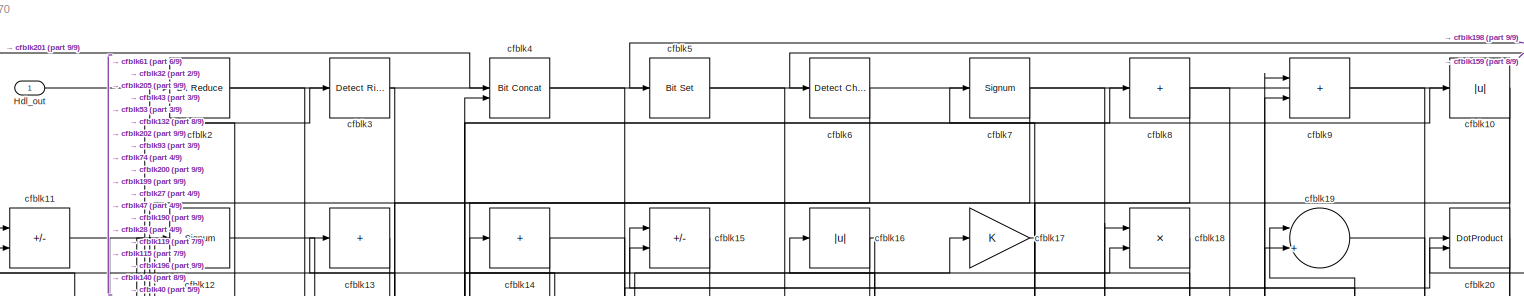
[diagram: root canvas - part 1/9, full width, top band]
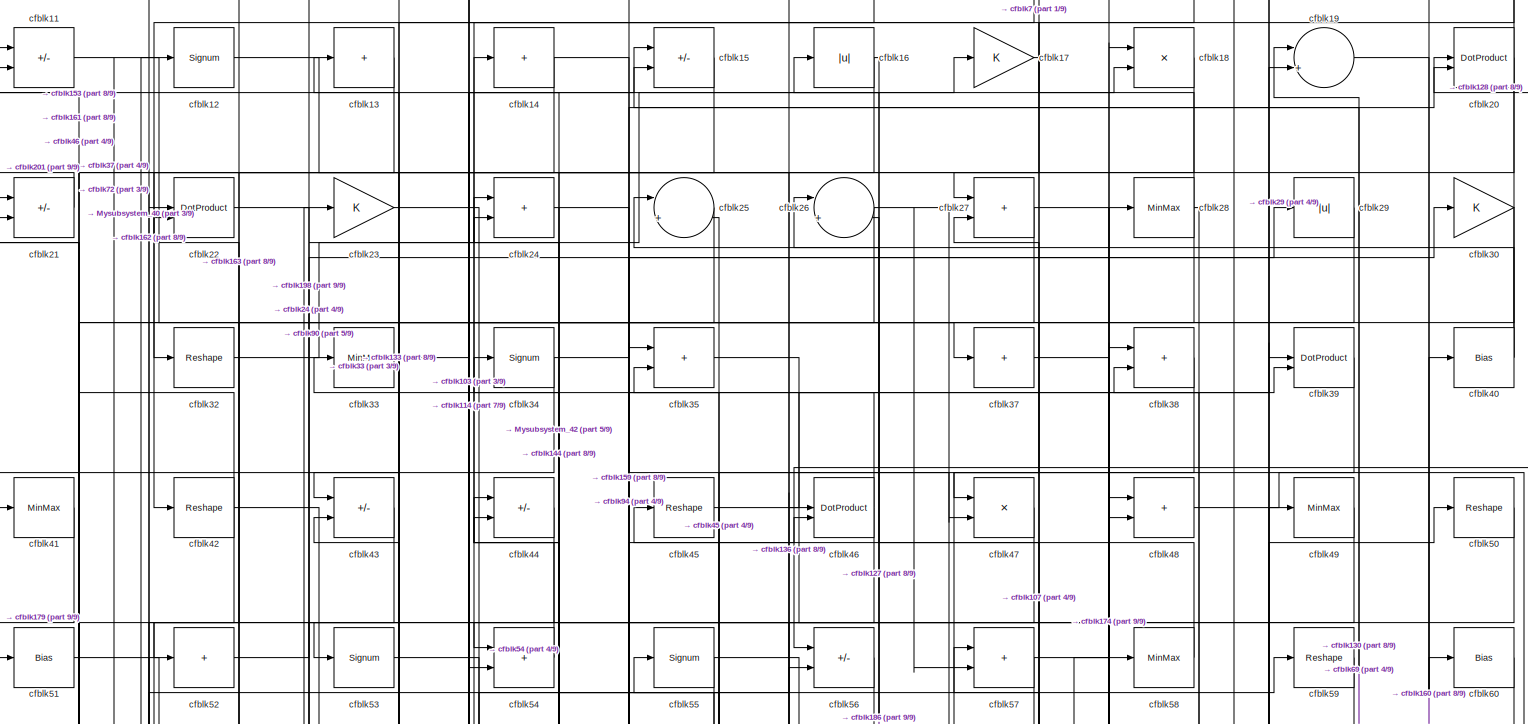
[diagram: root canvas - part 2/9, full width, top band]
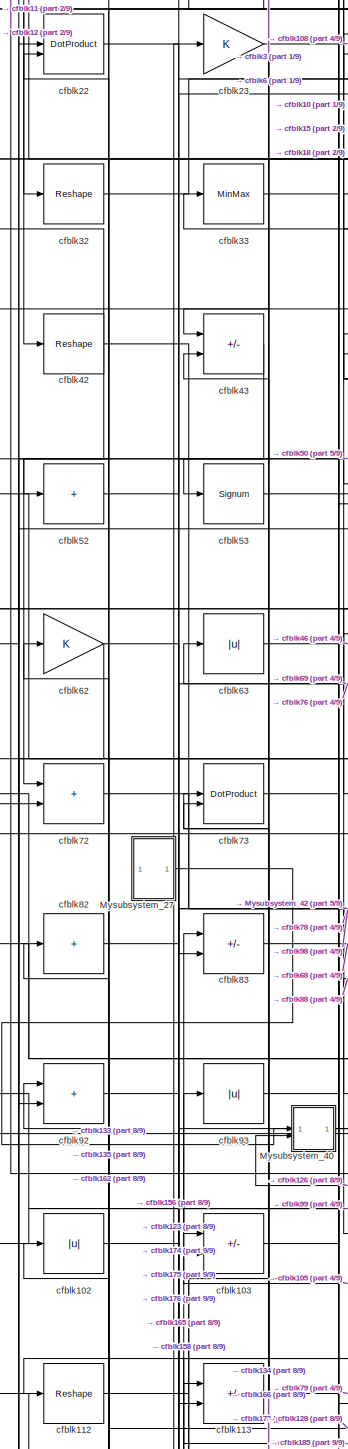
[diagram: root canvas - part 3/9, middle left region]
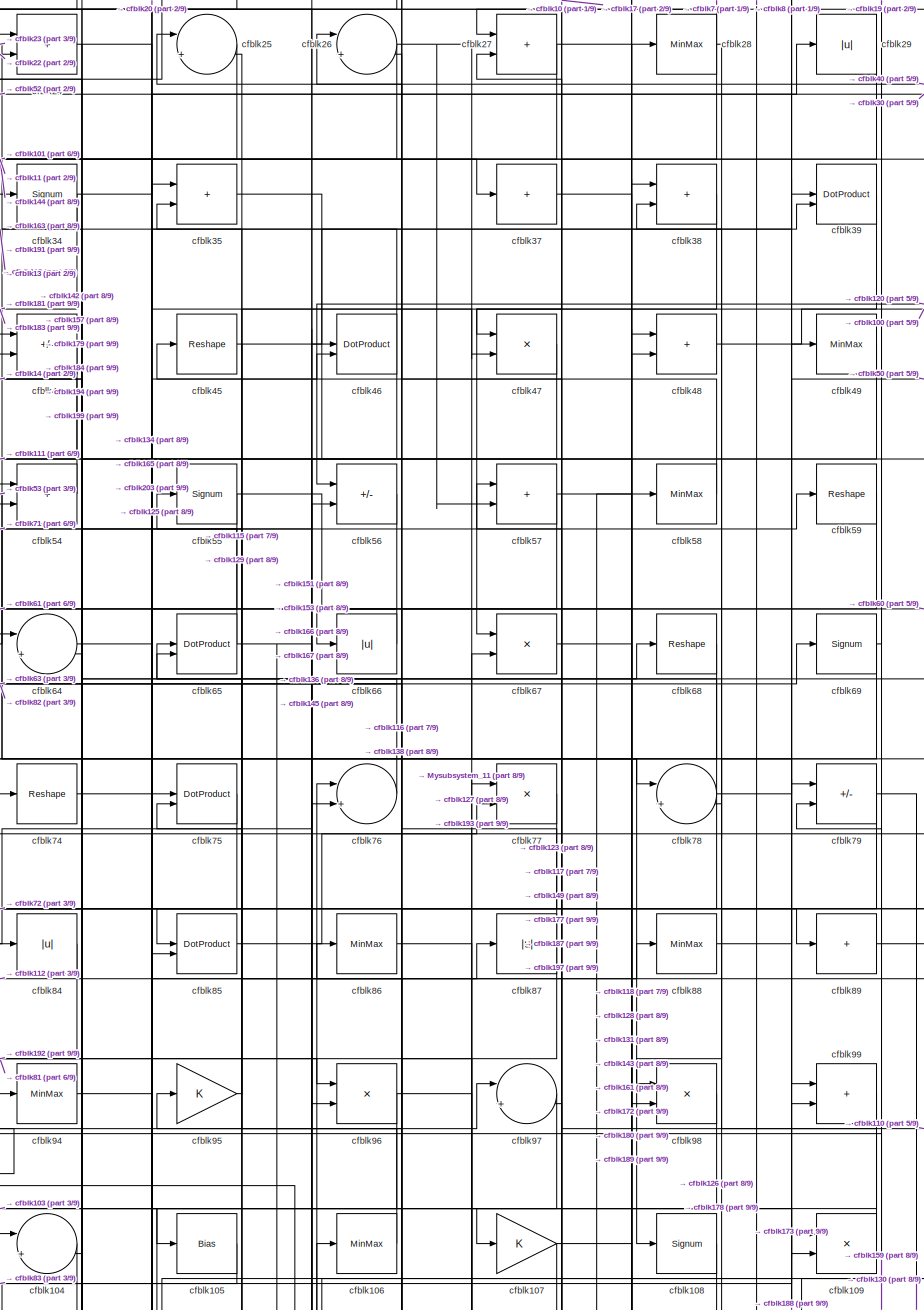
[diagram: root canvas - part 4/9, top center region]
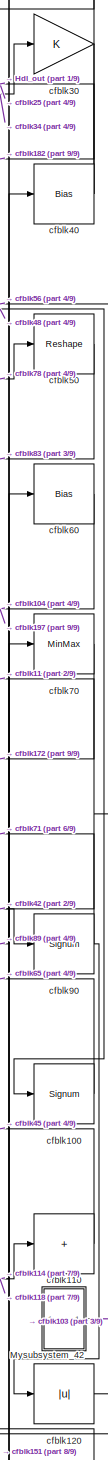
[diagram: root canvas - part 5/9, middle right region]
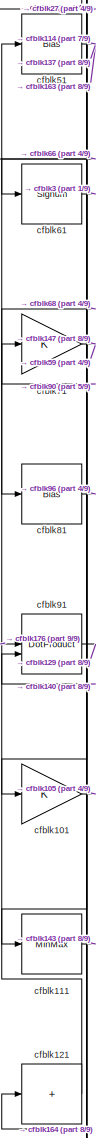
[diagram: root canvas - part 6/9, middle left region]
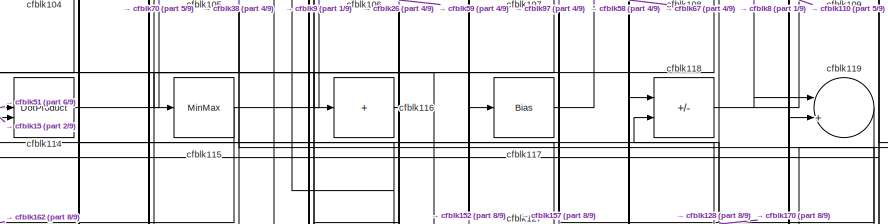
[diagram: root canvas - part 7/9, central region]
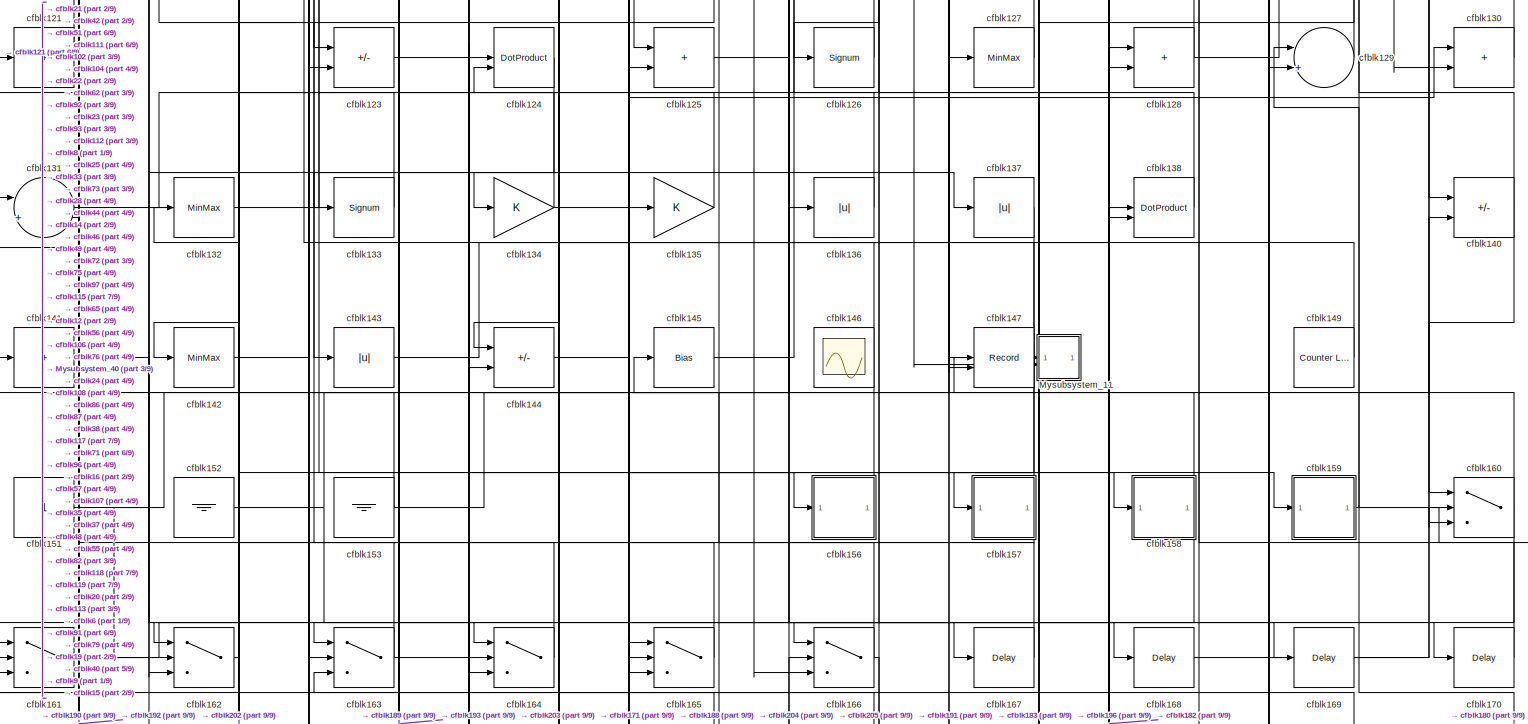
[diagram: root canvas - part 8/9, full width, bottom band]
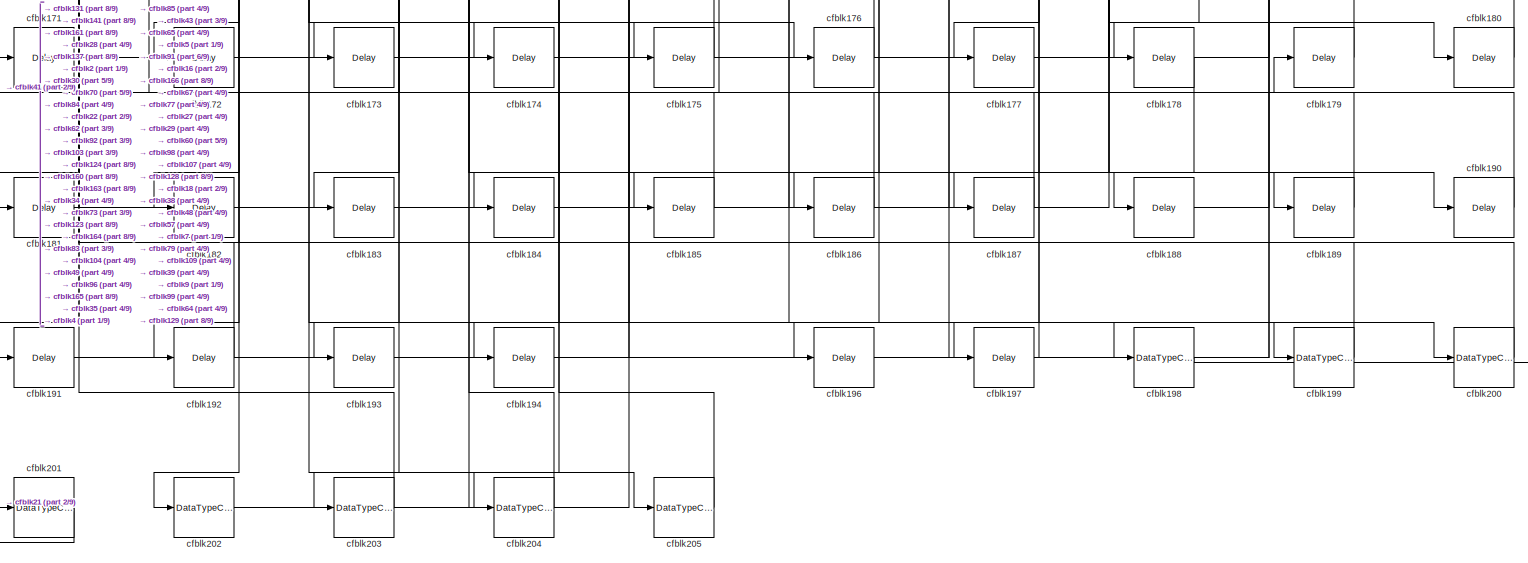
[diagram: root canvas - part 9/9, full width, bottom band]
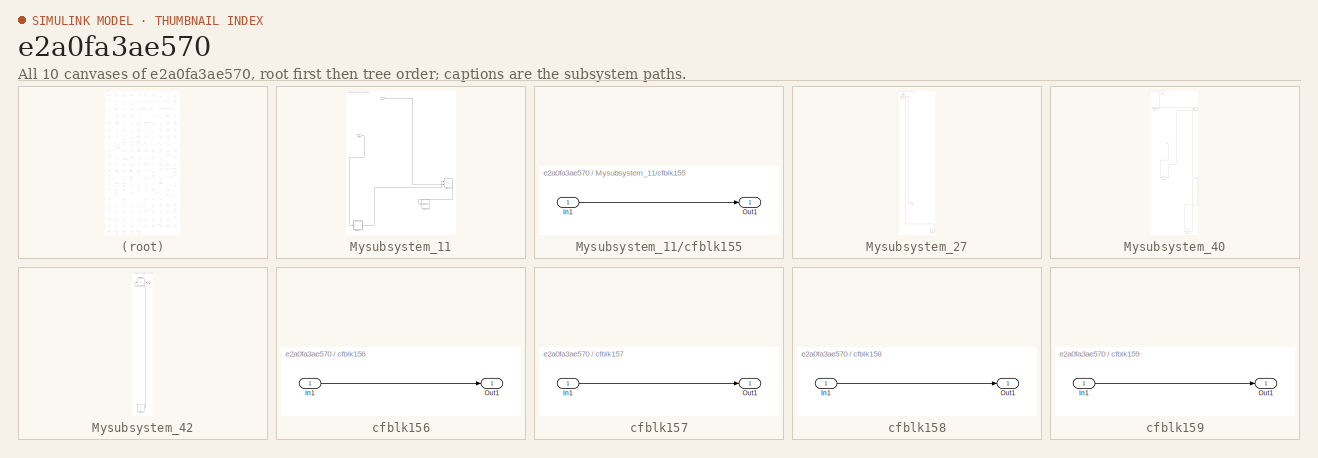
[diagram: thumbnail index - all 10 canvases of the model, root first then tree order]
MODEL slx_e2a0fa3ae570
KIND model
CONFIG AbsTol = auto
CONFIG EnableMultiTasking = off
CONFIG FixedStep = auto
CONFIG MaxStep = auto
CONFIG MinStep = auto
CONFIG RelTol = 1e-3
CONFIG SampleTimeConstraint = Unconstrained
CONFIG SolverName = VariableStepAuto
CONFIG StartTime = 0.0
CONFIG StopTime = 10.0
BLOCK [Outport] Hdl_out
  OutDataTypeStr = uint8
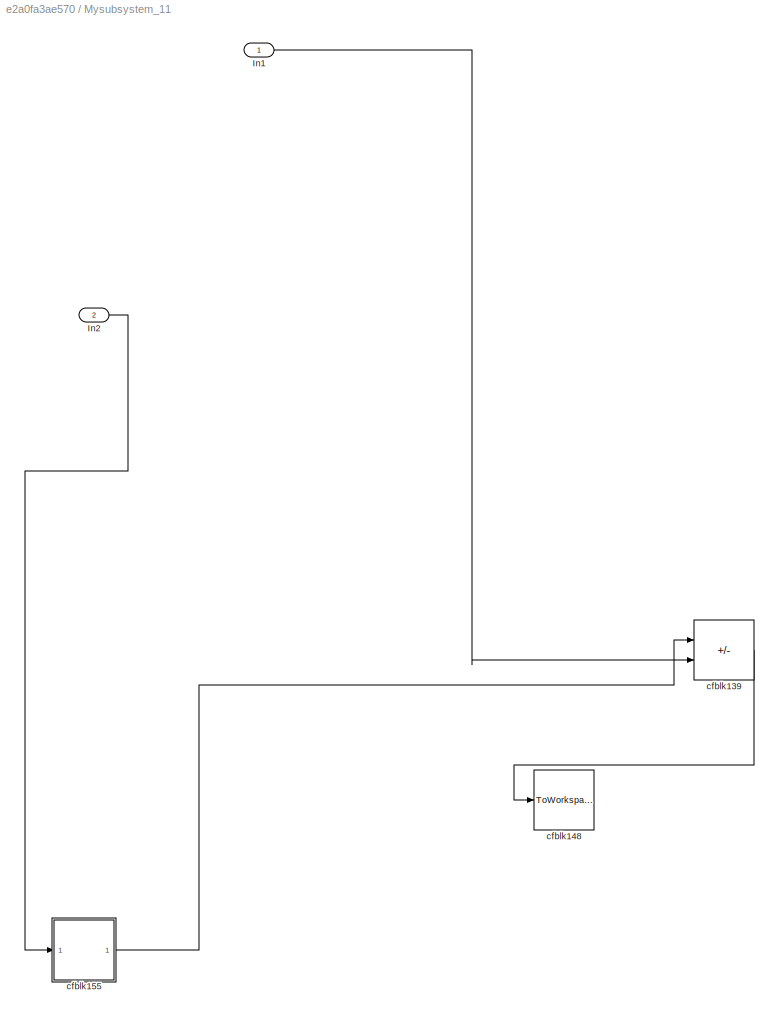
BLOCK [SubSystem] Mysubsystem_11
  RTWFcnName = Mysubsystem_11
  RTWFcnNameOpts = User specified
  RTWFileNameOpts = Use function name
  RTWSystemCode = Reusable function
  TreatAsAtomicUnit = on
BLOCK [Inport] Mysubsystem_11/In1
BLOCK [Inport] Mysubsystem_11/In2
  Port = 2
BLOCK [Sum] Mysubsystem_11/cfblk139
  IconShape = rectangular
  Inputs = +-
BLOCK [ToWorkspace] Mysubsystem_11/cfblk148
  MaxDataPoints = inf
  SampleTime = -1
  SaveFormat = Timeseries
  VariableName = simout
BLOCK [SubSystem] Mysubsystem_11/cfblk155
  LibrarySourceBlock = hdlsllib/Ports &\nSubsystems/Subsystem
BLOCK [Inport] Mysubsystem_11/cfblk155/In1
BLOCK [Outport] Mysubsystem_11/cfblk155/Out1
BLOCK [SubSystem] Mysubsystem_27
  RTWFcnName = Mysubsystem_27
  RTWFcnNameOpts = User specified
  RTWFileNameOpts = Use function name
  RTWSystemCode = Reusable function
  TreatAsAtomicUnit = on
BLOCK [Reference] Mysubsystem_27/cfblk1  REF=hdlsllib/Logic and Bit
Operations/Bit Slice
  SourceBlock = hdlsllib/Logic and Bit\nOperations/Bit Slice
  SourceType = Bit Slice
BLOCK [Ground] Mysubsystem_27/cfblk154
BLOCK [Outport] Mysubsystem_27/y
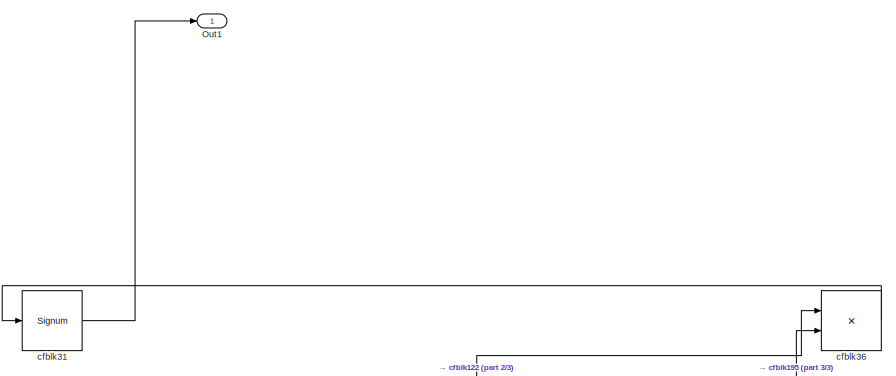
[diagram: Mysubsystem_40 - part 1/3, full width, top band]
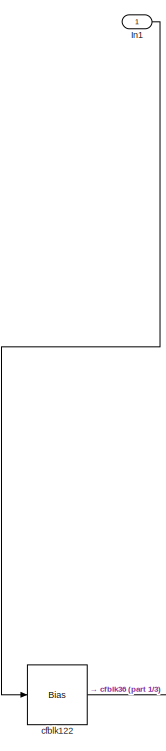
[diagram: Mysubsystem_40 - part 2/3, middle left region]
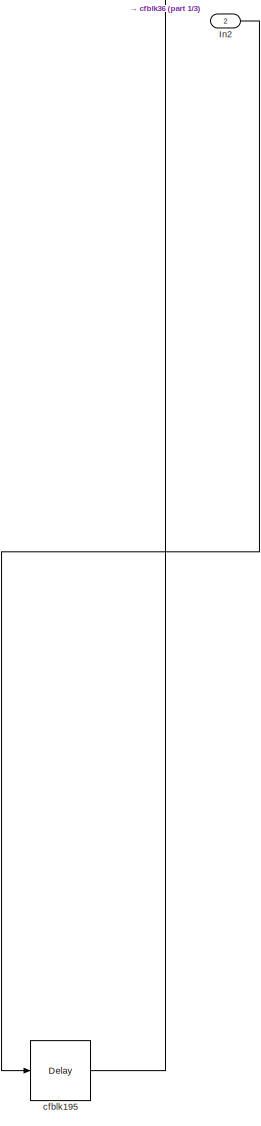
[diagram: Mysubsystem_40 - part 3/3, bottom right region]
BLOCK [SubSystem] Mysubsystem_40
  RTWFcnName = Mysubsystem_40
  RTWFcnNameOpts = User specified
  RTWFileNameOpts = Use function name
  RTWSystemCode = Reusable function
  TreatAsAtomicUnit = on
BLOCK [Inport] Mysubsystem_40/In1
BLOCK [Inport] Mysubsystem_40/In2
  Port = 2
BLOCK [Outport] Mysubsystem_40/Out1
BLOCK [Bias] Mysubsystem_40/cfblk122
  Bias = 0.0
  SaturateOnIntegerOverflow = off
BLOCK [Delay] Mysubsystem_40/cfblk195
  InputPortMap = u0
  SampleTime = 1
BLOCK [Signum] Mysubsystem_40/cfblk31
BLOCK [Product] Mysubsystem_40/cfblk36
  Inputs = */
  RndMeth = Zero
  SaturateOnIntegerOverflow = on
BLOCK [SubSystem] Mysubsystem_42
  RTWFcnName = Mysubsystem_42
  RTWFcnNameOpts = User specified
  RTWFileNameOpts = Use function name
  RTWSystemCode = Reusable function
  TreatAsAtomicUnit = on
BLOCK [Outport] Mysubsystem_42/Out1
BLOCK [Constant] Mysubsystem_42/cfblk150
  SampleTime = -1
BLOCK [Sum] Mysubsystem_42/cfblk80
  IconShape = rectangular
  Inputs = +
BLOCK [Abs] cfblk10
  OutDataTypeStr = uint8
  SaturateOnIntegerOverflow = off
BLOCK [Signum] cfblk100
BLOCK [Gain] cfblk101
  OutDataTypeStr = uint8
BLOCK [Abs] cfblk102
  OutDataTypeStr = uint8
  SaturateOnIntegerOverflow = off
BLOCK [Sum] cfblk103
  IconShape = rectangular
  Inputs = +-
  OutDataTypeStr = uint8
BLOCK [Sum] cfblk104
  Inputs = |++
  OutDataTypeStr = uint8
BLOCK [Bias] cfblk105
  Bias = 0.0
  SaturateOnIntegerOverflow = off
BLOCK [MinMax] cfblk106
  OutDataTypeStr = uint8
BLOCK [Gain] cfblk107
  OutDataTypeStr = uint8
BLOCK [Signum] cfblk108
BLOCK [Product] cfblk109
  Inputs = */
  OutDataTypeStr = uint8
  RndMeth = Zero
  SaturateOnIntegerOverflow = on
BLOCK [Sum] cfblk11
  IconShape = rectangular
  Inputs = +-
  OutDataTypeStr = uint8
BLOCK [Sum] cfblk110
  IconShape = rectangular
  Inputs = +
  OutDataTypeStr = uint8
BLOCK [MinMax] cfblk111
  OutDataTypeStr = uint8
BLOCK [Reshape] cfblk112
BLOCK [Sum] cfblk113
  IconShape = rectangular
  Inputs = +-
  OutDataTypeStr = uint8
BLOCK [DotProduct] cfblk114
  OutDataTypeStr = uint8
BLOCK [MinMax] cfblk115
  OutDataTypeStr = uint8
BLOCK [Sum] cfblk116
  IconShape = rectangular
  Inputs = +
  OutDataTypeStr = uint8
BLOCK [Bias] cfblk117
  Bias = 0.0
  SaturateOnIntegerOverflow = off
BLOCK [Sum] cfblk118
  IconShape = rectangular
  Inputs = +-
  OutDataTypeStr = uint8
BLOCK [Sum] cfblk119
  Inputs = |++
  OutDataTypeStr = uint8
BLOCK [Signum] cfblk12
BLOCK [Abs] cfblk120
  OutDataTypeStr = uint8
  SaturateOnIntegerOverflow = off
BLOCK [Sum] cfblk121
  IconShape = rectangular
  Inputs = +
  OutDataTypeStr = uint8
BLOCK [Sum] cfblk123
  IconShape = rectangular
  Inputs = +-
  OutDataTypeStr = uint8
BLOCK [DotProduct] cfblk124
  OutDataTypeStr = uint8
BLOCK [Sum] cfblk125
  IconShape = rectangular
  OutDataTypeStr = uint8
BLOCK [Signum] cfblk126
BLOCK [MinMax] cfblk127
  OutDataTypeStr = uint8
BLOCK [Sum] cfblk128
  IconShape = rectangular
  OutDataTypeStr = uint8
BLOCK [Sum] cfblk129
  Inputs = |++
  OutDataTypeStr = uint8
BLOCK [Sum] cfblk13
  IconShape = rectangular
  Inputs = +
  OutDataTypeStr = uint8
BLOCK [Sum] cfblk130
  IconShape = rectangular
  OutDataTypeStr = uint8
BLOCK [Sum] cfblk131
  Inputs = |++
  OutDataTypeStr = uint8
BLOCK [MinMax] cfblk132
  OutDataTypeStr = uint8
BLOCK [Signum] cfblk133
BLOCK [Gain] cfblk134
  OutDataTypeStr = uint8
BLOCK [Gain] cfblk135
  OutDataTypeStr = uint8
BLOCK [Abs] cfblk136
  OutDataTypeStr = uint8
  SaturateOnIntegerOverflow = off
BLOCK [Abs] cfblk137
  OutDataTypeStr = uint8
  SaturateOnIntegerOverflow = off
BLOCK [DotProduct] cfblk138
  OutDataTypeStr = uint8
BLOCK [Sum] cfblk14
  IconShape = rectangular
  Inputs = +
  OutDataTypeStr = uint8
BLOCK [Sum] cfblk140
  IconShape = rectangular
  Inputs = +-
  OutDataTypeStr = uint8
BLOCK [Sum] cfblk141
  IconShape = rectangular
  Inputs = +
  OutDataTypeStr = uint8
BLOCK [MinMax] cfblk142
  OutDataTypeStr = uint8
BLOCK [Abs] cfblk143
  OutDataTypeStr = uint8
  SaturateOnIntegerOverflow = off
BLOCK [Sum] cfblk144
  IconShape = rectangular
  Inputs = +-
  OutDataTypeStr = uint8
BLOCK [Bias] cfblk145
  Bias = 0.0
  SaturateOnIntegerOverflow = off
BLOCK [Scope] cfblk146
  Floating = on
  NumInputPorts = 1
  ScopeSpecificationString = Simulink.scopes.TimeScopeBlockCfg('CurrentConfiguration', extmgr.ConfigurationSet(extmgr.Configuration('Core','General UI',true,'FigureColor',[0.156862745098039 0.156862745098039 0.156862745098039]),extmgr.Configuration('Core','Source UI',true),extmgr.Configuration('Sources','WiredSimulink',true,'DataLoggingVariableName','ScopeData1','DataLoggingSaveFormat','StructureWithTime','DataLoggingLimitDat...<+2713ch>
BLOCK [Record] cfblk147
  CompatibilityTag = XY
  FileSettingsInternal = {"entries":[{"content":{"excelSettings":{"content":{},"type":"Streamout.ExcelSettings"}},"type":"Streamout.FileSettingStorage","uuid":""}],"packageUris":["http:\/\/schema.mathworks.com\/mf0\/streamout_blocks\/R2020a"],"version":"1.0"}
  Layout = [1 1]
  SignalsInternal = {"entries":[{"content":{"signals":[{"content":{"blockPath":[],"dimensions":[1],"domain":"","lineColor":"#a2142f","plots":[1],"port":1,"signalID":35086,"signalName":"cfblk158"},"type":"RecordBlkView.Signal","uuid":""},{"content":{"blockPath":[],"dimensions":[1],"domain":"","lineColor":"#139fff","plots":[1],"port":2,"signalID":35089,"signalName":"cfblk71"},"type":"RecordBlkView.Signal","uuid":""}]},...<+143ch>
  VisualizationBindings = {"xyplotplugin":{"info":[{"series":[{"bindingParametersList":[{"parameter":"X-Axis","signalID":35086,"signalName":"cfblk158"},{"parameter":"Y-Axis","signalID":35089,"signalName":"cfblk71"}],"seriesID":47070}],"subplotID":1}]}}
  st = -1
BLOCK [Reference] cfblk149  REF=hdlsllib/Sources/Counter
Limited
  SourceBlock = hdlsllib/Sources/Counter\nLimited
  SourceType = Counter Limited
BLOCK [Sum] cfblk15
  IconShape = rectangular
  Inputs = +-
  OutDataTypeStr = uint8
BLOCK [Constant] cfblk151
  OutDataTypeStr = uint8
  SampleTime = -1
BLOCK [Ground] cfblk152
BLOCK [Ground] cfblk153
BLOCK [SubSystem] cfblk156
  LibrarySourceBlock = hdlsllib/Ports &\nSubsystems/Subsystem
BLOCK [Inport] cfblk156/In1
BLOCK [Outport] cfblk156/Out1
BLOCK [SubSystem] cfblk157
  LibrarySourceBlock = hdlsllib/Ports &\nSubsystems/Subsystem
BLOCK [Inport] cfblk157/In1
BLOCK [Outport] cfblk157/Out1
BLOCK [SubSystem] cfblk158
  LibrarySourceBlock = hdlsllib/Ports &\nSubsystems/Subsystem
BLOCK [Inport] cfblk158/In1
BLOCK [Outport] cfblk158/Out1
BLOCK [SubSystem] cfblk159
  LibrarySourceBlock = hdlsllib/Ports &\nSubsystems/Subsystem
BLOCK [Inport] cfblk159/In1
BLOCK [Outport] cfblk159/Out1
BLOCK [Abs] cfblk16
  OutDataTypeStr = uint8
  SaturateOnIntegerOverflow = off
BLOCK [Switch] cfblk160
  InputSameDT = off
  OutDataTypeStr = uint8
  SaturateOnIntegerOverflow = off
BLOCK [Switch] cfblk161
  InputSameDT = off
  OutDataTypeStr = uint8
  SaturateOnIntegerOverflow = off
BLOCK [Switch] cfblk162
  InputSameDT = off
  OutDataTypeStr = uint8
  SaturateOnIntegerOverflow = off
BLOCK [Switch] cfblk163
  InputSameDT = off
  OutDataTypeStr = uint8
  SaturateOnIntegerOverflow = off
BLOCK [Switch] cfblk164
  InputSameDT = off
  OutDataTypeStr = uint8
  SaturateOnIntegerOverflow = off
BLOCK [Switch] cfblk165
  InputSameDT = off
  OutDataTypeStr = uint8
  SaturateOnIntegerOverflow = off
BLOCK [Switch] cfblk166
  InputSameDT = off
  OutDataTypeStr = uint8
  SaturateOnIntegerOverflow = off
BLOCK [Delay] cfblk167
  InputPortMap = u0
  SampleTime = 1
BLOCK [Delay] cfblk168
  InputPortMap = u0
  SampleTime = 1
BLOCK [Delay] cfblk169
  InputPortMap = u0
  SampleTime = 1
BLOCK [Gain] cfblk17
  OutDataTypeStr = uint8
BLOCK [Delay] cfblk170
  InputPortMap = u0
  SampleTime = 1
BLOCK [Delay] cfblk171
  InputPortMap = u0
  SampleTime = 1
BLOCK [Delay] cfblk172
  InputPortMap = u0
  SampleTime = 1
BLOCK [Delay] cfblk173
  InputPortMap = u0
  SampleTime = 1
BLOCK [Delay] cfblk174
  InputPortMap = u0
  SampleTime = 1
BLOCK [Delay] cfblk175
  InputPortMap = u0
  SampleTime = 1
BLOCK [Delay] cfblk176
  InputPortMap = u0
  SampleTime = 1
BLOCK [Delay] cfblk177
  InputPortMap = u0
  SampleTime = 1
BLOCK [Delay] cfblk178
  InputPortMap = u0
  SampleTime = 1
BLOCK [Delay] cfblk179
  InputPortMap = u0
  SampleTime = 1
BLOCK [Product] cfblk18
  Inputs = */
  OutDataTypeStr = uint8
  RndMeth = Zero
  SaturateOnIntegerOverflow = on
BLOCK [Delay] cfblk180
  InputPortMap = u0
  SampleTime = 1
BLOCK [Delay] cfblk181
  InputPortMap = u0
  SampleTime = 1
BLOCK [Delay] cfblk182
  InputPortMap = u0
  SampleTime = 1
BLOCK [Delay] cfblk183
  InputPortMap = u0
  SampleTime = 1
BLOCK [Delay] cfblk184
  InputPortMap = u0
  SampleTime = 1
BLOCK [Delay] cfblk185
  InputPortMap = u0
  SampleTime = 1
BLOCK [Delay] cfblk186
  InputPortMap = u0
  SampleTime = 1
BLOCK [Delay] cfblk187
  InputPortMap = u0
  SampleTime = 1
BLOCK [Delay] cfblk188
  InputPortMap = u0
  SampleTime = 1
BLOCK [Delay] cfblk189
  InputPortMap = u0
  SampleTime = 1
BLOCK [Sum] cfblk19
  Inputs = |++
  OutDataTypeStr = uint8
BLOCK [Delay] cfblk190
  InputPortMap = u0
  SampleTime = 1
BLOCK [Delay] cfblk191
  InputPortMap = u0
  SampleTime = 1
BLOCK [Delay] cfblk192
  InputPortMap = u0
  SampleTime = 1
BLOCK [Delay] cfblk193
  InputPortMap = u0
  SampleTime = 1
BLOCK [Delay] cfblk194
  InputPortMap = u0
  SampleTime = 1
BLOCK [Delay] cfblk196
  InputPortMap = u0
  SampleTime = 1
BLOCK [Delay] cfblk197
  InputPortMap = u0
  SampleTime = 1
BLOCK [DataTypeConversion] cfblk198
  OutDataTypeStr = uint8
  RndMeth = Floor
  SaturateOnIntegerOverflow = off
BLOCK [DataTypeConversion] cfblk199
  OutDataTypeStr = uint8
  RndMeth = Floor
  SaturateOnIntegerOverflow = off
BLOCK [Reference] cfblk2  REF=hdlsllib/Logic and Bit
Operations/Bit Reduce
  SourceBlock = hdlsllib/Logic and Bit\nOperations/Bit Reduce
  SourceType = Bit Reduce
BLOCK [DotProduct] cfblk20
  OutDataTypeStr = uint8
BLOCK [DataTypeConversion] cfblk200
  OutDataTypeStr = uint8
  RndMeth = Floor
  SaturateOnIntegerOverflow = off
BLOCK [DataTypeConversion] cfblk201
  OutDataTypeStr = uint8
  RndMeth = Floor
  SaturateOnIntegerOverflow = off
BLOCK [DataTypeConversion] cfblk202
  OutDataTypeStr = uint8
  RndMeth = Floor
  SaturateOnIntegerOverflow = off
BLOCK [DataTypeConversion] cfblk203
  OutDataTypeStr = uint8
  RndMeth = Floor
  SaturateOnIntegerOverflow = off
BLOCK [DataTypeConversion] cfblk204
  OutDataTypeStr = uint8
  RndMeth = Floor
  SaturateOnIntegerOverflow = off
BLOCK [DataTypeConversion] cfblk205
  OutDataTypeStr = uint8
  RndMeth = Floor
  SaturateOnIntegerOverflow = off
BLOCK [Sum] cfblk21
  IconShape = rectangular
  Inputs = +-
  OutDataTypeStr = uint8
BLOCK [DotProduct] cfblk22
  OutDataTypeStr = uint8
BLOCK [Gain] cfblk23
  OutDataTypeStr = uint8
BLOCK [Sum] cfblk24
  IconShape = rectangular
  OutDataTypeStr = uint8
BLOCK [Sum] cfblk25
  Inputs = |++
  OutDataTypeStr = uint8
BLOCK [Sum] cfblk26
  Inputs = |++
  OutDataTypeStr = uint8
BLOCK [Sum] cfblk27
  IconShape = rectangular
  OutDataTypeStr = uint8
BLOCK [MinMax] cfblk28
  OutDataTypeStr = uint8
BLOCK [Abs] cfblk29
  OutDataTypeStr = uint8
  SaturateOnIntegerOverflow = off
BLOCK [Reference] cfblk3  REF=hdlsllib/Logic and Bit
Operations/Detect Rise
Positive
  SourceBlock = hdlsllib/Logic and Bit\nOperations/Detect Rise\nPositive
  SourceType = Detect Rise Positive
BLOCK [Gain] cfblk30
  OutDataTypeStr = uint8
BLOCK [Reshape] cfblk32
BLOCK [MinMax] cfblk33
  OutDataTypeStr = uint8
BLOCK [Signum] cfblk34
BLOCK [Sum] cfblk35
  IconShape = rectangular
  OutDataTypeStr = uint8
BLOCK [Sum] cfblk37
  IconShape = rectangular
  Inputs = +
  OutDataTypeStr = uint8
BLOCK [Sum] cfblk38
  IconShape = rectangular
  OutDataTypeStr = uint8
BLOCK [DotProduct] cfblk39
  OutDataTypeStr = uint8
BLOCK [Reference] cfblk4  REF=hdlsllib/Logic and Bit
Operations/Bit Concat
  SourceBlock = hdlsllib/Logic and Bit\nOperations/Bit Concat
  SourceType = Bit Concat
BLOCK [Bias] cfblk40
  Bias = 0.0
  SaturateOnIntegerOverflow = off
BLOCK [MinMax] cfblk41
  OutDataTypeStr = uint8
BLOCK [Reshape] cfblk42
BLOCK [Sum] cfblk43
  IconShape = rectangular
  Inputs = +-
  OutDataTypeStr = uint8
BLOCK [Sum] cfblk44
  IconShape = rectangular
  Inputs = +-
  OutDataTypeStr = uint8
BLOCK [Reshape] cfblk45
BLOCK [DotProduct] cfblk46
  OutDataTypeStr = uint8
BLOCK [Product] cfblk47
  Inputs = */
  OutDataTypeStr = uint8
  RndMeth = Zero
  SaturateOnIntegerOverflow = on
BLOCK [Sum] cfblk48
  IconShape = rectangular
  OutDataTypeStr = uint8
BLOCK [MinMax] cfblk49
  OutDataTypeStr = uint8
BLOCK [Reference] cfblk5  REF=simulink/Logic and Bit
Operations/Bit Set
  LibrarySourceBlock = hdlsllib/Logic and Bit\nOperations/Bit Set
  SourceBlock = simulink/Logic and Bit\nOperations/Bit Set
  SourceType = Bit Set
BLOCK [Reshape] cfblk50
BLOCK [Bias] cfblk51
  Bias = 0.0
  SaturateOnIntegerOverflow = off
BLOCK [Sum] cfblk52
  IconShape = rectangular
  Inputs = +
  OutDataTypeStr = uint8
BLOCK [Signum] cfblk53
BLOCK [Sum] cfblk54
  IconShape = rectangular
  OutDataTypeStr = uint8
BLOCK [Signum] cfblk55
BLOCK [Sum] cfblk56
  IconShape = rectangular
  Inputs = +-
  OutDataTypeStr = uint8
BLOCK [Sum] cfblk57
  IconShape = rectangular
  OutDataTypeStr = uint8
BLOCK [MinMax] cfblk58
  OutDataTypeStr = uint8
BLOCK [Reshape] cfblk59
BLOCK [Reference] cfblk6  REF=simulink/Logic and Bit
Operations/Detect
Change
  LibrarySourceBlock = hdlsllib/Logic and Bit\nOperations/Detect\nChange
  SourceBlock = simulink/Logic and Bit\nOperations/Detect\nChange
  SourceType = Detect Change
BLOCK [Bias] cfblk60
  Bias = 0.0
  SaturateOnIntegerOverflow = off
BLOCK [Signum] cfblk61
BLOCK [Gain] cfblk62
  OutDataTypeStr = uint8
BLOCK [Abs] cfblk63
  OutDataTypeStr = uint8
  SaturateOnIntegerOverflow = off
BLOCK [Sum] cfblk64
  Inputs = |++
  OutDataTypeStr = uint8
BLOCK [DotProduct] cfblk65
  OutDataTypeStr = uint8
BLOCK [Abs] cfblk66
  OutDataTypeStr = uint8
  SaturateOnIntegerOverflow = off
BLOCK [Product] cfblk67
  Inputs = */
  OutDataTypeStr = uint8
  RndMeth = Zero
  SaturateOnIntegerOverflow = on
BLOCK [Reshape] cfblk68
BLOCK [Signum] cfblk69
BLOCK [Signum] cfblk7
BLOCK [MinMax] cfblk70
  OutDataTypeStr = uint8
BLOCK [Gain] cfblk71
  OutDataTypeStr = uint8
BLOCK [Sum] cfblk72
  IconShape = rectangular
  OutDataTypeStr = uint8
BLOCK [DotProduct] cfblk73
  OutDataTypeStr = uint8
BLOCK [Reshape] cfblk74
BLOCK [DotProduct] cfblk75
  OutDataTypeStr = uint8
BLOCK [Sum] cfblk76
  Inputs = |++
  OutDataTypeStr = uint8
BLOCK [Product] cfblk77
  Inputs = */
  OutDataTypeStr = uint8
  RndMeth = Zero
  SaturateOnIntegerOverflow = on
BLOCK [Sum] cfblk78
  Inputs = |++
  OutDataTypeStr = uint8
BLOCK [Sum] cfblk79
  IconShape = rectangular
  Inputs = +-
  OutDataTypeStr = uint8
BLOCK [Sum] cfblk8
  IconShape = rectangular
  Inputs = +
  OutDataTypeStr = uint8
BLOCK [Bias] cfblk81
  Bias = 0.0
  SaturateOnIntegerOverflow = off
BLOCK [Sum] cfblk82
  IconShape = rectangular
  Inputs = +
  OutDataTypeStr = uint8
BLOCK [Sum] cfblk83
  IconShape = rectangular
  Inputs = +-
  OutDataTypeStr = uint8
BLOCK [Abs] cfblk84
  OutDataTypeStr = uint8
  SaturateOnIntegerOverflow = off
BLOCK [DotProduct] cfblk85
  OutDataTypeStr = uint8
BLOCK [MinMax] cfblk86
  OutDataTypeStr = uint8
BLOCK [Abs] cfblk87
  OutDataTypeStr = uint8
  SaturateOnIntegerOverflow = off
BLOCK [MinMax] cfblk88
  OutDataTypeStr = uint8
BLOCK [Sum] cfblk89
  IconShape = rectangular
  Inputs = +
  OutDataTypeStr = uint8
BLOCK [Sum] cfblk9
  IconShape = rectangular
  OutDataTypeStr = uint8
BLOCK [Signum] cfblk90
BLOCK [DotProduct] cfblk91
  OutDataTypeStr = uint8
BLOCK [Sum] cfblk92
  IconShape = rectangular
  OutDataTypeStr = uint8
BLOCK [Abs] cfblk93
  OutDataTypeStr = uint8
  SaturateOnIntegerOverflow = off
BLOCK [MinMax] cfblk94
  OutDataTypeStr = uint8
BLOCK [Gain] cfblk95
  OutDataTypeStr = uint8
BLOCK [Product] cfblk96
  Inputs = */
  OutDataTypeStr = uint8
  RndMeth = Zero
  SaturateOnIntegerOverflow = on
BLOCK [Sum] cfblk97
  Inputs = |++
  OutDataTypeStr = uint8
BLOCK [Product] cfblk98
  Inputs = */
  OutDataTypeStr = uint8
  RndMeth = Zero
  SaturateOnIntegerOverflow = on
BLOCK [Sum] cfblk99
  IconShape = rectangular
  OutDataTypeStr = uint8
LINE Mysubsystem_11/In1:1 -> Mysubsystem_11/cfblk139:2
LINE Mysubsystem_11/In2:1 -> Mysubsystem_11/cfblk155:1
LINE Mysubsystem_11/cfblk139:1 -> Mysubsystem_11/cfblk148:1
LINE Mysubsystem_11/cfblk155/In1:1 -> Mysubsystem_11/cfblk155/Out1:1
LINE Mysubsystem_11/cfblk155:1 -> Mysubsystem_11/cfblk139:1
LINE Mysubsystem_27/cfblk154:1 -> Mysubsystem_27/cfblk1:1
LINE Mysubsystem_27/cfblk1:1 -> Mysubsystem_27/y:1
LINE Mysubsystem_27:1 -> Mysubsystem_40:1
LINE Mysubsystem_40/In1:1 -> Mysubsystem_40/cfblk122:1
LINE Mysubsystem_40/In2:1 -> Mysubsystem_40/cfblk195:1
LINE Mysubsystem_40/cfblk122:1 -> Mysubsystem_40/cfblk36:1
LINE Mysubsystem_40/cfblk195:1 -> Mysubsystem_40/cfblk36:2
LINE Mysubsystem_40/cfblk31:1 -> Mysubsystem_40/Out1:1
LINE Mysubsystem_40/cfblk36:1 -> Mysubsystem_40/cfblk31:1
LINE Mysubsystem_40:1 -> cfblk12:1
LINE Mysubsystem_42/cfblk150:1 -> Mysubsystem_42/cfblk80:1
LINE Mysubsystem_42/cfblk80:1 -> Mysubsystem_42/Out1:1
NET Mysubsystem_42:1 -> cfblk103:2, cfblk11:1
LINE cfblk100:1 -> cfblk65:1
LINE cfblk101:1 -> cfblk105:1
LINE cfblk102:1 -> cfblk123:2
NET cfblk103:1 -> cfblk15:1, cfblk173:1
LINE cfblk104:1 -> cfblk142:1
LINE cfblk105:1 -> cfblk83:1
LINE cfblk106:1 -> cfblk75:2
NET cfblk107:1 -> cfblk123:1, cfblk189:1
NET cfblk108:1 -> cfblk112:1, cfblk126:1
LINE cfblk109:1 -> cfblk38:2
NET cfblk10:1 -> cfblk47:1, cfblk74:1
LINE cfblk110:1 -> cfblk45:1
LINE cfblk111:1 -> cfblk143:1
NET cfblk112:1 -> cfblk158:1, cfblk88:1
LINE cfblk113:1 -> cfblk79:1
LINE cfblk114:1 -> cfblk70:1
NET cfblk115:1 -> cfblk162:1, cfblk9:1
LINE cfblk116:1 -> cfblk26:1
NET cfblk117:1 -> cfblk58:1, cfblk97:2
LINE cfblk118:1 -> cfblk110:1
LINE cfblk119:1 -> cfblk157:1
NET cfblk11:1 -> cfblk37:1, cfblk72:2
LINE cfblk120:1 -> cfblk56:1
LINE cfblk121:1 -> cfblk51:1
LINE cfblk123:1 -> cfblk188:1
LINE cfblk124:1 -> cfblk203:1
LINE cfblk125:1 -> cfblk170:1
NET cfblk126:1 -> Mysubsystem_40:2, cfblk24:1
LINE cfblk127:1 -> cfblk16:1
NET cfblk128:1 -> cfblk119:2, cfblk20:1, cfblk82:1
LINE cfblk129:1 -> cfblk35:2
LINE cfblk12:1 -> cfblk136:1
LINE cfblk130:1 -> cfblk15:2
LINE cfblk131:1 -> cfblk48:2
LINE cfblk132:1 -> cfblk8:1
LINE cfblk133:1 -> cfblk102:1
NET cfblk134:1 -> cfblk33:1, cfblk46:2
LINE cfblk135:1 -> cfblk62:1
LINE cfblk136:1 -> cfblk106:1
LINE cfblk137:1 -> cfblk202:1
LINE cfblk138:1 -> cfblk86:1
LINE cfblk13:1 -> cfblk52:1
NET cfblk140:1 -> cfblk113:1, cfblk160:3, cfblk91:2
LINE cfblk141:1 -> cfblk168:1
LINE cfblk142:1 -> cfblk97:1
LINE cfblk143:1 -> cfblk28:1
LINE cfblk144:1 -> cfblk130:1
LINE cfblk145:1 -> cfblk76:1
LINE cfblk149:1 -> cfblk57:1
NET cfblk14:1 -> cfblk159:1, cfblk41:1
NET cfblk151:1 -> cfblk162:2, cfblk40:1, cfblk76:2
NET cfblk152:1 -> cfblk117:1, cfblk132:1, cfblk164:3
NET cfblk153:1 -> cfblk21:2, cfblk56:2
LINE cfblk156/In1:1 -> cfblk156/Out1:1
LINE cfblk156:1 -> cfblk23:1
LINE cfblk157/In1:1 -> cfblk157/Out1:1
NET cfblk157:1 -> cfblk145:1, cfblk44:1
LINE cfblk158/In1:1 -> cfblk158/Out1:1
NET cfblk158:1 -> cfblk147:1, cfblk165:2
LINE cfblk159/In1:1 -> cfblk159/Out1:1
NET cfblk159:1 -> cfblk6:1, cfblk79:2
LINE cfblk15:1 -> cfblk114:2
NET cfblk160:1 -> cfblk193:1, cfblk21:1
LINE cfblk161:1 -> cfblk164:1
LINE cfblk162:1 -> cfblk92:1
NET cfblk163:1 -> cfblk169:1, cfblk22:2
NET cfblk164:1 -> cfblk121:1, cfblk131:1
LINE cfblk165:1 -> cfblk93:1
NET cfblk166:1 -> cfblk196:1, cfblk73:1
LINE cfblk167:1 -> cfblk75:1
LINE cfblk168:1 -> cfblk140:2
LINE cfblk169:1 -> cfblk160:2
NET cfblk16:1 -> cfblk144:1, cfblk186:1
LINE cfblk170:1 -> cfblk118:2
LINE cfblk171:1 -> cfblk164:2
LINE cfblk172:1 -> cfblk48:1
LINE cfblk173:1 -> cfblk99:2
LINE cfblk174:1 -> cfblk18:1
LINE cfblk175:1 -> cfblk43:2
LINE cfblk176:1 -> cfblk91:1
LINE cfblk177:1 -> cfblk38:1
LINE cfblk178:1 -> cfblk204:1
LINE cfblk179:1 -> cfblk64:2
LINE cfblk17:1 -> cfblk107:1
LINE cfblk180:1 -> cfblk129:1
LINE cfblk181:1 -> cfblk77:1
LINE cfblk182:1 -> cfblk128:2
LINE cfblk183:1 -> cfblk166:2
LINE cfblk184:1 -> cfblk35:1
LINE cfblk185:1 -> cfblk73:2
LINE cfblk186:1 -> cfblk22:1
LINE cfblk187:1 -> cfblk65:2
LINE cfblk188:1 -> cfblk39:1
LINE cfblk189:1 -> cfblk163:3
LINE cfblk18:1 -> cfblk42:1
LINE cfblk190:1 -> cfblk131:2
LINE cfblk191:1 -> cfblk165:1
LINE cfblk192:1 -> cfblk161:3
LINE cfblk193:1 -> cfblk67:2
LINE cfblk194:1 -> cfblk109:1
LINE cfblk196:1 -> cfblk9:2
LINE cfblk197:1 -> cfblk27:2
LINE cfblk198:1 -> cfblk5:1
NET cfblk199:1 -> cfblk104:2, cfblk171:1
LINE cfblk19:1 -> cfblk160:1
LINE cfblk200:1 -> cfblk2:1
LINE cfblk201:1 -> cfblk4:1
LINE cfblk202:1 -> cfblk4:2
NET cfblk203:1 -> cfblk141:1, cfblk85:2
LINE cfblk204:1 -> cfblk124:1
LINE cfblk205:1 -> cfblk124:2
NET cfblk20:1 -> cfblk133:1, cfblk161:1
LINE cfblk21:1 -> cfblk201:1
NET cfblk22:1 -> cfblk198:1, cfblk24:2
LINE cfblk23:1 -> cfblk108:1
NET cfblk24:1 -> cfblk134:1, cfblk47:2
LINE cfblk25:1 -> cfblk163:1
NET cfblk26:1 -> cfblk54:2, cfblk57:2, cfblk78:1
NET cfblk27:1 -> cfblk101:1, cfblk89:1
NET cfblk28:1 -> cfblk144:2, cfblk191:1, cfblk7:1, cfblk98:1
LINE cfblk29:1 -> cfblk187:1
LINE cfblk2:1 -> cfblk205:1
LINE cfblk30:1 -> cfblk182:1
LINE cfblk32:1 -> cfblk17:1
LINE cfblk33:1 -> cfblk18:2
NET cfblk34:1 -> cfblk181:1, cfblk183:1, cfblk30:1
LINE cfblk35:1 -> cfblk128:1
LINE cfblk37:1 -> cfblk138:1
NET cfblk38:1 -> Mysubsystem_11:2, cfblk115:1
LINE cfblk39:1 -> cfblk67:1
LINE cfblk3:1 -> cfblk53:1
NET cfblk40:1 -> Hdl_out:1, cfblk25:1
LINE cfblk41:1 -> cfblk179:1
NET cfblk42:1 -> cfblk11:2, cfblk162:3, cfblk90:1
LINE cfblk43:1 -> cfblk72:1
LINE cfblk44:1 -> cfblk54:1
NET cfblk45:1 -> cfblk19:2, cfblk85:1
NET cfblk46:1 -> cfblk111:1, cfblk13:1
NET cfblk47:1 -> cfblk84:1, cfblk96:2
LINE cfblk48:1 -> cfblk100:1
NET cfblk49:1 -> cfblk165:3, cfblk194:1
LINE cfblk4:1 -> cfblk200:1
LINE cfblk50:1 -> cfblk83:2
NET cfblk51:1 -> cfblk114:1, cfblk137:1, cfblk163:2
LINE cfblk52:1 -> cfblk29:1
LINE cfblk53:1 -> cfblk99:1
LINE cfblk54:1 -> cfblk14:1
NET cfblk55:1 -> cfblk138:2, cfblk161:2
LINE cfblk56:1 -> cfblk66:1
NET cfblk57:1 -> cfblk125:2, cfblk180:1
LINE cfblk58:1 -> cfblk26:2
LINE cfblk59:1 -> cfblk116:1
LINE cfblk5:1 -> cfblk199:1
NET cfblk60:1 -> cfblk104:1, cfblk197:1
LINE cfblk61:1 -> cfblk3:1
NET cfblk62:1 -> cfblk174:1, cfblk175:1, cfblk92:2
LINE cfblk63:1 -> cfblk46:1
LINE cfblk64:1 -> cfblk109:2
NET cfblk65:1 -> cfblk166:3, cfblk167:1, cfblk44:2
LINE cfblk66:1 -> cfblk61:1
LINE cfblk67:1 -> cfblk118:1
LINE cfblk68:1 -> cfblk81:1
NET cfblk69:1 -> cfblk19:1, cfblk78:2
LINE cfblk6:1 -> cfblk43:1
LINE cfblk70:1 -> cfblk172:1
NET cfblk71:1 -> cfblk147:2, cfblk59:1
NET cfblk72:1 -> cfblk135:1, cfblk98:2
LINE cfblk73:1 -> cfblk156:1
LINE cfblk74:1 -> cfblk39:2
LINE cfblk75:1 -> cfblk94:1
NET cfblk76:1 -> cfblk55:1, cfblk63:1
LINE cfblk77:1 -> cfblk95:1
NET cfblk78:1 -> cfblk113:2, cfblk34:1, cfblk50:1
NET cfblk79:1 -> cfblk130:2, cfblk178:1
NET cfblk7:1 -> cfblk190:1, cfblk32:1
LINE cfblk81:1 -> cfblk96:1
LINE cfblk82:1 -> cfblk69:1
NET cfblk83:1 -> cfblk185:1, cfblk68:1
LINE cfblk84:1 -> cfblk192:1
LINE cfblk85:1 -> cfblk77:2
LINE cfblk86:1 -> cfblk127:1
NET cfblk87:1 -> cfblk166:1, cfblk64:1
LINE cfblk88:1 -> cfblk49:1
LINE cfblk89:1 -> cfblk60:1
NET cfblk8:1 -> cfblk119:1, cfblk27:1
NET cfblk90:1 -> cfblk120:1, cfblk71:1
LINE cfblk91:1 -> cfblk129:2
LINE cfblk92:1 -> cfblk176:1
LINE cfblk93:1 -> cfblk10:1
NET cfblk94:1 -> cfblk20:2, cfblk87:1
LINE cfblk95:1 -> cfblk25:2
NET cfblk96:1 -> Mysubsystem_11:1, cfblk184:1
LINE cfblk97:1 -> cfblk125:1
LINE cfblk98:1 -> cfblk177:1
LINE cfblk99:1 -> cfblk103:1
LINE cfblk9:1 -> cfblk140:1
note: NET lines group one-source signal fan-out (src -> all destinations, sorted); 1:1 wires keep LINE
